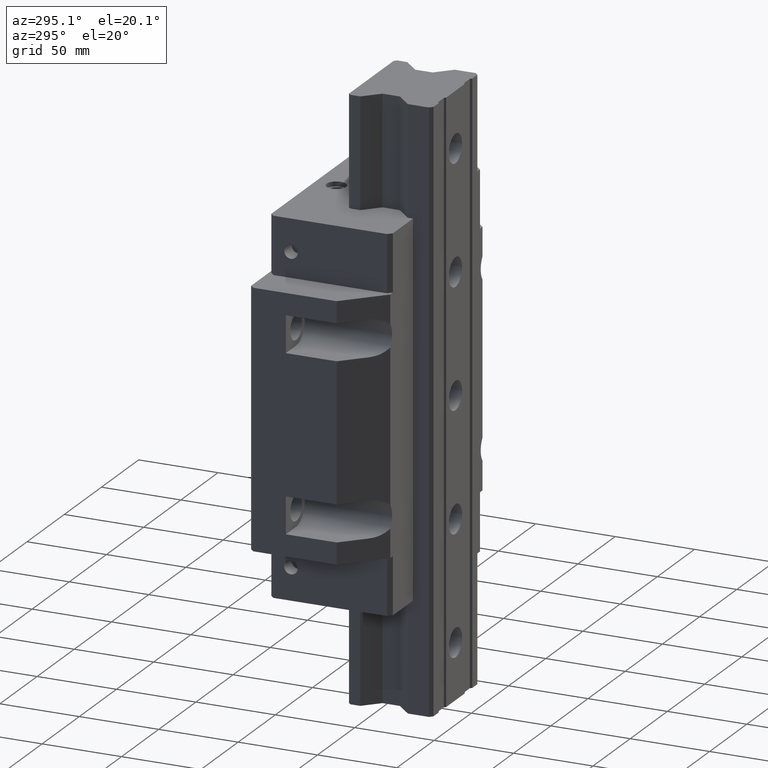
[diagram: clean part render]
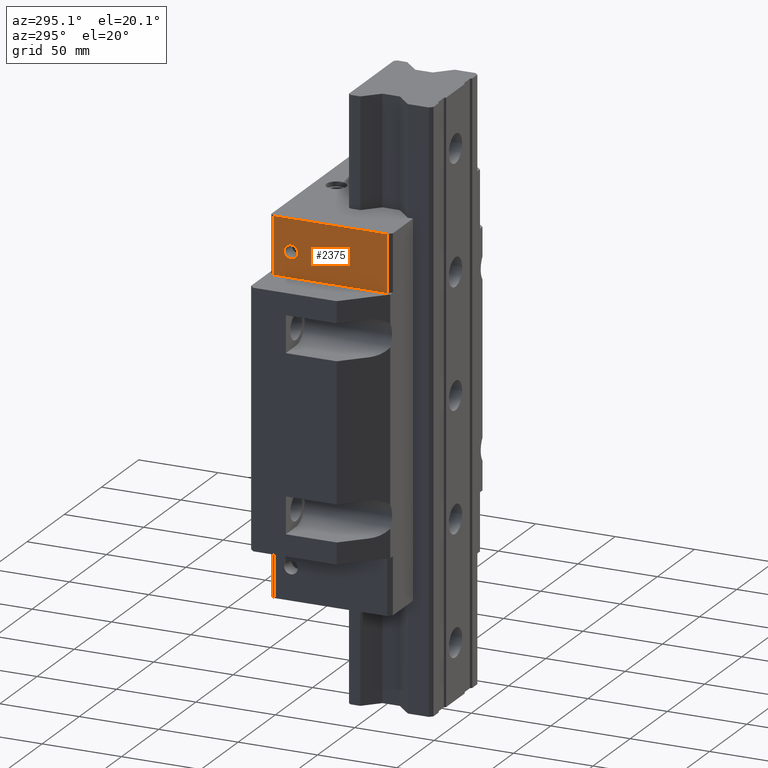
[diagram: same view with one face highlighted and labeled with its STEP entity id]
A machine part, auxiliary view. The second image highlights one B-rep face of the part: STEP entity #2375.
In plain terms, the highlighted planar face has unit normal (-1, -0, 0).
Its self-contained STEP definition (entity closure, byte-faithful):
#277=DIRECTION('',(0.E0,0.E0,1.E0));
#278=VECTOR('',#277,3.6E1);
#279=CARTESIAN_POINT('',(-6.100006E1,-4.E0,8.E1));
#280=LINE('',#279,#278);
#281=DIRECTION('',(0.E0,-1.E0,0.E0));
#282=VECTOR('',#281,7.1499992E1);
#283=CARTESIAN_POINT('',(-6.100006E1,-4.E0,1.16E2));
#284=LINE('',#283,#282);
#285=DIRECTION('',(0.E0,1.E0,0.E0));
#286=VECTOR('',#285,7.1499992E1);
#287=CARTESIAN_POINT('',(-6.100006E1,-7.5499992E1,8.E1));
#288=LINE('',#287,#286);
#301=CARTESIAN_POINT('',(-6.100006E1,-1.5E1,9.58E1));
#302=DIRECTION('',(-1.E0,-1.908031056366E-14,0.E0));
#303=DIRECTION('',(0.E0,0.E0,1.E0));
#304=AXIS2_PLACEMENT_3D('',#301,#302,#303);
#306=CARTESIAN_POINT('',(-6.100006E1,-1.5E1,9.58E1));
#307=DIRECTION('',(-1.E0,-1.908031056366E-14,0.E0));
#308=DIRECTION('',(0.E0,0.E0,-1.E0));
#309=AXIS2_PLACEMENT_3D('',#306,#307,#308);
#489=DIRECTION('',(-1.184237892934E-14,1.500034664382E-14,1.E0));
#490=VECTOR('',#489,3.6E1);
#491=CARTESIAN_POINT('',(-6.100006E1,-7.5499992E1,8.E1));
#492=LINE('',#491,#490);
#1797=CARTESIAN_POINT('',(-6.100006E1,-4.E0,8.E1));
#1798=VERTEX_POINT('',#1797);
#1799=CARTESIAN_POINT('',(-6.100006E1,-7.5499992E1,8.E1));
#1800=VERTEX_POINT('',#1799);
#1837=CARTESIAN_POINT('',(-6.100006E1,-4.E0,1.16E2));
#1838=VERTEX_POINT('',#1837);
#1859=CARTESIAN_POINT('',(-6.100006E1,-7.5499992E1,1.16E2));
#1860=VERTEX_POINT('',#1859);
#2024=CARTESIAN_POINT('',(-6.100006E1,-1.5E1,1.0005E2));
#2025=CARTESIAN_POINT('',(-6.100006E1,-1.5E1,9.155E1));
#2026=VERTEX_POINT('',#2024);
#2027=VERTEX_POINT('',#2025);
#2354=CARTESIAN_POINT('',(-6.100006E1,-7.5499992E1,-8.E1));
#2355=DIRECTION('',(-1.E0,-1.908031056366E-14,0.E0));
#2356=DIRECTION('',(-1.908031056366E-14,1.E0,0.E0));
#2357=AXIS2_PLACEMENT_3D('',#2354,#2355,#2356);
#2358=PLANE('',#2357);
#2360=ORIENTED_EDGE('',*,*,#2359,.T.);
#2362=ORIENTED_EDGE('',*,*,#2361,.T.);
#2364=ORIENTED_EDGE('',*,*,#2363,.F.);
#2366=ORIENTED_EDGE('',*,*,#2365,.T.);
#2367=EDGE_LOOP('',(#2360,#2362,#2364,#2366));
#2368=FACE_OUTER_BOUND('',#2367,.F.);
#2370=ORIENTED_EDGE('',*,*,#2369,.T.);
#2372=ORIENTED_EDGE('',*,*,#2371,.T.);
#2373=EDGE_LOOP('',(#2370,#2372));
#2374=FACE_BOUND('',#2373,.F.);
#2375=ADVANCED_FACE('',(#2368,#2374),#2358,.T.);
#305=CIRCLE('',#304,4.25E0);
#310=CIRCLE('',#309,4.25E0);
#2359=EDGE_CURVE('',#1798,#1838,#280,.T.);
#2361=EDGE_CURVE('',#1838,#1860,#284,.T.);
#2363=EDGE_CURVE('',#1800,#1860,#492,.T.);
#2365=EDGE_CURVE('',#1800,#1798,#288,.T.);
#2369=EDGE_CURVE('',#2026,#2027,#305,.T.);
#2371=EDGE_CURVE('',#2027,#2026,#310,.T.);